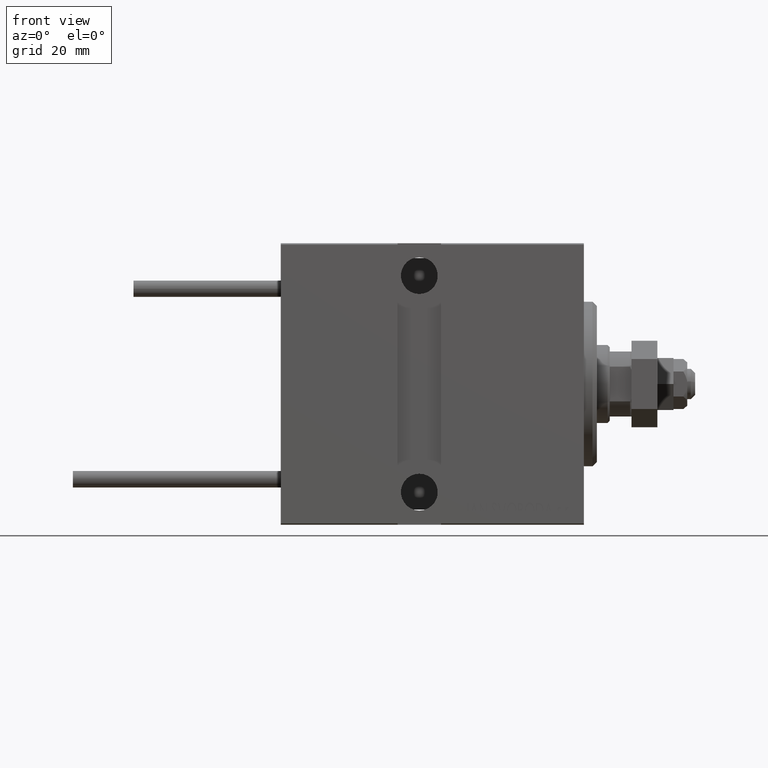
[diagram: clean part render]
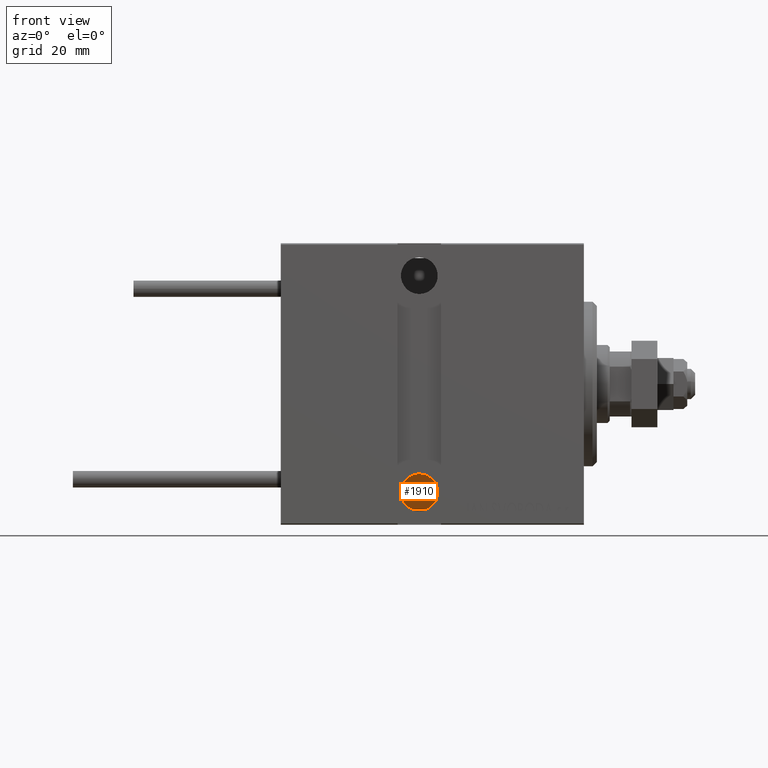
[diagram: same view with one face highlighted and labeled with its STEP entity id]
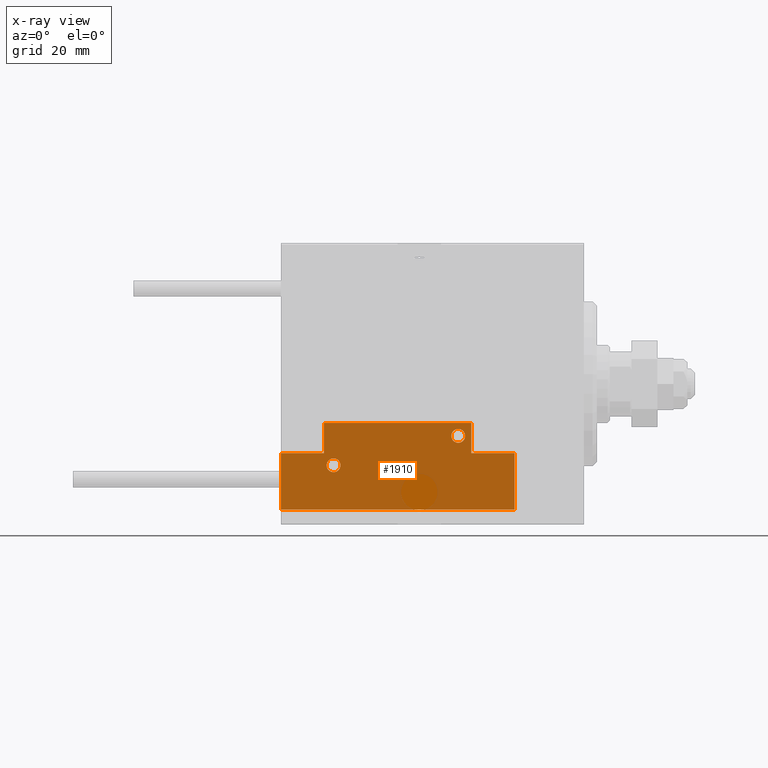
[diagram: x-ray of the same camera — body ghosted, the highlighted face saturated]
A machine part, front view. The second image highlights one B-rep face of the part: STEP entity #1910.
The next image is the same camera in x-ray: the body ghosted, the highlighted face saturated — about 94% of this face is hidden behind the body in this view.
In plain terms, the highlighted planar face has unit normal (-0, 1, 0).
Its self-contained STEP definition (entity closure, byte-faithful):
#69 = VECTOR ( 'NONE', #14360, 1000.000000000000000 ) ;
#615 = VECTOR ( 'NONE', #30468, 1000.000000000000000 ) ;
#941 = DIRECTION ( 'NONE',  ( 0.000000000000000000, -1.000000000000000000, 0.000000000000000000 ) ) ;
#1046 = EDGE_LOOP ( 'NONE', ( #14719, #45361 ) ) ;
#1475 = EDGE_CURVE ( 'NONE', #11720, #12651, #37559, .T. ) ;
#1602 = CARTESIAN_POINT ( 'NONE',  ( -26.99999999999993605, 20.00000000000002132, 0.000000000000000000 ) ) ;
#1910 = ADVANCED_FACE ( 'NONE', ( #13036, #32977, #21607 ), #48356, .F. ) ;
#2372 = DIRECTION ( 'NONE',  ( 0.000000000000000000, 0.000000000000000000, 1.000000000000000000 ) ) ;
#3543 = CARTESIAN_POINT ( 'NONE',  ( 17.00000000000000000, 7.000000000000009770, 0.000000000000000000 ) ) ;
#3556 = CARTESIAN_POINT ( 'NONE',  ( -16.99999999999999289, 3.252606517456513302E-15, 0.000000000000000000 ) ) ;
#3637 = EDGE_CURVE ( 'NONE', #12186, #15467, #28123, .T. ) ;
#5635 = EDGE_CURVE ( 'NONE', #40791, #12186, #13185, .T. ) ;
#6203 = CARTESIAN_POINT ( 'NONE',  ( 0.000000000000000000, 0.000000000000000000, 0.000000000000000000 ) ) ;
#6412 = DIRECTION ( 'NONE',  ( 1.000000000000000000, 0.000000000000000000, 0.000000000000000000 ) ) ;
#6542 = LINE ( 'NONE', #18887, #49007 ) ;
#6713 = ORIENTED_EDGE ( 'NONE', *, *, #3637, .F. ) ;
#7017 = LINE ( 'NONE', #18644, #69 ) ;
#8010 = VECTOR ( 'NONE', #32413, 1000.000000000000000 ) ;
#8751 = EDGE_LOOP ( 'NONE', ( #27495, #36542 ) ) ;
#9041 = EDGE_CURVE ( 'NONE', #39357, #24979, #14221, .T. ) ;
#10119 = ORIENTED_EDGE ( 'NONE', *, *, #13174, .F. ) ;
#10668 = DIRECTION ( 'NONE',  ( 1.000000000000000000, 0.000000000000000000, 0.000000000000000000 ) ) ;
#11111 = DIRECTION ( 'NONE',  ( 0.000000000000000000, 0.000000000000000000, 1.000000000000000000 ) ) ;
#11720 = VERTEX_POINT ( 'NONE', #43246 ) ;
#12186 = VERTEX_POINT ( 'NONE', #49401 ) ;
#12651 = VERTEX_POINT ( 'NONE', #38765 ) ;
#12814 = CIRCLE ( 'NONE', #28983, 1.600000000000000755 ) ;
#12935 = DIRECTION ( 'NONE',  ( 1.000000000000000000, -1.734723475976796001E-16, 0.000000000000000000 ) ) ;
#13036 = FACE_BOUND ( 'NONE', #8751, .T. ) ;
#13174 = EDGE_CURVE ( 'NONE', #12651, #38116, #6542, .T. ) ;
#13185 = LINE ( 'NONE', #24304, #26188 ) ;
#13323 = CARTESIAN_POINT ( 'NONE',  ( -13.19999999999994778, 9.800000000000004263, 0.000000000000000000 ) ) ;
#13947 = DIRECTION ( 'NONE',  ( 0.000000000000000000, 0.000000000000000000, 1.000000000000000000 ) ) ;
#14093 = AXIS2_PLACEMENT_3D ( 'NONE', #6203, #28432, #32224 ) ;
#14181 = VERTEX_POINT ( 'NONE', #13323 ) ;
#14221 = CIRCLE ( 'NONE', #41598, 1.600000000000000755 ) ;
#14329 = LINE ( 'NONE', #45108, #615 ) ;
#14360 = DIRECTION ( 'NONE',  ( -1.000000000000000000, 6.424901762877062263E-17, 0.000000000000000000 ) ) ;
#14623 = ORIENTED_EDGE ( 'NONE', *, *, #34212, .F. ) ;
#14719 = ORIENTED_EDGE ( 'NONE', *, *, #9041, .T. ) ;
#14946 = DIRECTION ( 'NONE',  ( 0.000000000000000000, 0.000000000000000000, 1.000000000000000000 ) ) ;
#15467 = VERTEX_POINT ( 'NONE', #36933 ) ;
#16236 = CIRCLE ( 'NONE', #29128, 1.600000000000000755 ) ;
#16333 = VERTEX_POINT ( 'NONE', #26303 ) ;
#18505 = CARTESIAN_POINT ( 'NONE',  ( -16.99999999999999289, 3.252606517456513302E-15, 0.000000000000000000 ) ) ;
#18644 = CARTESIAN_POINT ( 'NONE',  ( 27.00000000000006395, 20.00000000000001776, 0.000000000000000000 ) ) ;
#18728 = CARTESIAN_POINT ( 'NONE',  ( 13.99999999999999822, 3.000000000000002665, 0.000000000000000000 ) ) ;
#18887 = CARTESIAN_POINT ( 'NONE',  ( -16.99999999999999289, 7.000000000000003553, 0.000000000000000000 ) ) ;
#19916 = CARTESIAN_POINT ( 'NONE',  ( 16.99999999999999289, 3.252606517456513302E-15, 0.000000000000000000 ) ) ;
#20551 = DIRECTION ( 'NONE',  ( 0.000000000000000000, 1.000000000000000000, 0.000000000000000000 ) ) ;
#20800 = LINE ( 'NONE', #1602, #8010 ) ;
#21164 = VERTEX_POINT ( 'NONE', #25886 ) ;
#21607 = FACE_OUTER_BOUND ( 'NONE', #22692, .T. ) ;
#22692 = EDGE_LOOP ( 'NONE', ( #42367, #49507, #42506, #10119, #46901, #26308, #14623, #6713 ) ) ;
#24043 = VECTOR ( 'NONE', #10668, 1000.000000000000000 ) ;
#24304 = CARTESIAN_POINT ( 'NONE',  ( 17.00000000000000000, 7.000000000000009770, 0.000000000000000000 ) ) ;
#24979 = VERTEX_POINT ( 'NONE', #35442 ) ;
#25331 = EDGE_CURVE ( 'NONE', #24979, #39357, #12814, .T. ) ;
#25361 = CARTESIAN_POINT ( 'NONE',  ( -14.79999999999994920, 9.800000000000004263, 0.000000000000000000 ) ) ;
#25886 = CARTESIAN_POINT ( 'NONE',  ( -16.39999999999994884, 9.800000000000004263, 0.000000000000000000 ) ) ;
#25966 = EDGE_CURVE ( 'NONE', #47638, #40791, #14329, .T. ) ;
#26188 = VECTOR ( 'NONE', #12935, 1000.000000000000000 ) ;
#26303 = CARTESIAN_POINT ( 'NONE',  ( -26.99999999999993605, 20.00000000000002132, 0.000000000000000000 ) ) ;
#26308 = ORIENTED_EDGE ( 'NONE', *, *, #29978, .F. ) ;
#26941 = VECTOR ( 'NONE', #20551, 1000.000000000000000 ) ;
#27138 = CIRCLE ( 'NONE', #28780, 1.600000000000000755 ) ;
#27495 = ORIENTED_EDGE ( 'NONE', *, *, #45405, .T. ) ;
#28123 = LINE ( 'NONE', #43516, #26941 ) ;
#28432 = DIRECTION ( 'NONE',  ( -0.000000000000000000, 0.000000000000000000, 1.000000000000000000 ) ) ;
#28780 = AXIS2_PLACEMENT_3D ( 'NONE', #33136, #13947, #40948 ) ;
#28983 = AXIS2_PLACEMENT_3D ( 'NONE', #18728, #14946, #49253 ) ;
#29128 = AXIS2_PLACEMENT_3D ( 'NONE', #25361, #2372, #6412 ) ;
#29978 = EDGE_CURVE ( 'NONE', #16333, #11720, #20800, .T. ) ;
#30468 = DIRECTION ( 'NONE',  ( 9.912705577010318647E-16, 1.000000000000000000, 0.000000000000000000 ) ) ;
#32224 = DIRECTION ( 'NONE',  ( 1.000000000000000000, 0.000000000000000000, 0.000000000000000000 ) ) ;
#32413 = DIRECTION ( 'NONE',  ( -8.006416042969869188E-16, -1.000000000000000000, 0.000000000000000000 ) ) ;
#32977 = FACE_BOUND ( 'NONE', #1046, .T. ) ;
#33136 = CARTESIAN_POINT ( 'NONE',  ( -14.79999999999994920, 9.800000000000004263, 0.000000000000000000 ) ) ;
#33965 = EDGE_CURVE ( 'NONE', #21164, #14181, #16236, .T. ) ;
#34015 = CARTESIAN_POINT ( 'NONE',  ( -26.99999999999994671, 7.000000000000005329, 0.000000000000000000 ) ) ;
#34212 = EDGE_CURVE ( 'NONE', #15467, #16333, #7017, .T. ) ;
#35442 = CARTESIAN_POINT ( 'NONE',  ( 12.39999999999999858, 3.000000000000002665, 0.000000000000000000 ) ) ;
#35860 = VECTOR ( 'NONE', #41834, 1000.000000000000000 ) ;
#36542 = ORIENTED_EDGE ( 'NONE', *, *, #33965, .T. ) ;
#36933 = CARTESIAN_POINT ( 'NONE',  ( 27.00000000000006395, 20.00000000000001776, 0.000000000000000000 ) ) ;
#37559 = LINE ( 'NONE', #34015, #35860 ) ;
#38116 = VERTEX_POINT ( 'NONE', #3556 ) ;
#38151 = DIRECTION ( 'NONE',  ( 1.000000000000000000, 0.000000000000000000, 0.000000000000000000 ) ) ;
#38765 = CARTESIAN_POINT ( 'NONE',  ( -16.99999999999999289, 7.000000000000003553, 0.000000000000000000 ) ) ;
#39357 = VERTEX_POINT ( 'NONE', #44759 ) ;
#40791 = VERTEX_POINT ( 'NONE', #3543 ) ;
#40948 = DIRECTION ( 'NONE',  ( 1.000000000000000000, 0.000000000000000000, 0.000000000000000000 ) ) ;
#41598 = AXIS2_PLACEMENT_3D ( 'NONE', #45691, #11111, #38151 ) ;
#41834 = DIRECTION ( 'NONE',  ( 1.000000000000000000, -1.734723475976815230E-16, 0.000000000000000000 ) ) ;
#42367 = ORIENTED_EDGE ( 'NONE', *, *, #5635, .F. ) ;
#42506 = ORIENTED_EDGE ( 'NONE', *, *, #49010, .F. ) ;
#43246 = CARTESIAN_POINT ( 'NONE',  ( -26.99999999999994671, 7.000000000000005329, 0.000000000000000000 ) ) ;
#43516 = CARTESIAN_POINT ( 'NONE',  ( 27.00000000000006395, 7.000000000000007994, 0.000000000000000000 ) ) ;
#44759 = CARTESIAN_POINT ( 'NONE',  ( 15.59999999999999964, 3.000000000000002665, 0.000000000000000000 ) ) ;
#45108 = CARTESIAN_POINT ( 'NONE',  ( 16.99999999999999289, 3.252606517456513302E-15, 0.000000000000000000 ) ) ;
#45243 = LINE ( 'NONE', #18505, #24043 ) ;
#45361 = ORIENTED_EDGE ( 'NONE', *, *, #25331, .T. ) ;
#45405 = EDGE_CURVE ( 'NONE', #14181, #21164, #27138, .T. ) ;
#45691 = CARTESIAN_POINT ( 'NONE',  ( 13.99999999999999822, 3.000000000000002665, 0.000000000000000000 ) ) ;
#46901 = ORIENTED_EDGE ( 'NONE', *, *, #1475, .F. ) ;
#47638 = VERTEX_POINT ( 'NONE', #19916 ) ;
#48356 = PLANE ( 'NONE',  #14093 ) ;
#49007 = VECTOR ( 'NONE', #941, 1000.000000000000000 ) ;
#49010 = EDGE_CURVE ( 'NONE', #38116, #47638, #45243, .T. ) ;
#49253 = DIRECTION ( 'NONE',  ( 1.000000000000000000, 0.000000000000000000, 0.000000000000000000 ) ) ;
#49401 = CARTESIAN_POINT ( 'NONE',  ( 27.00000000000006395, 7.000000000000007994, 0.000000000000000000 ) ) ;
#49507 = ORIENTED_EDGE ( 'NONE', *, *, #25966, .F. ) ;